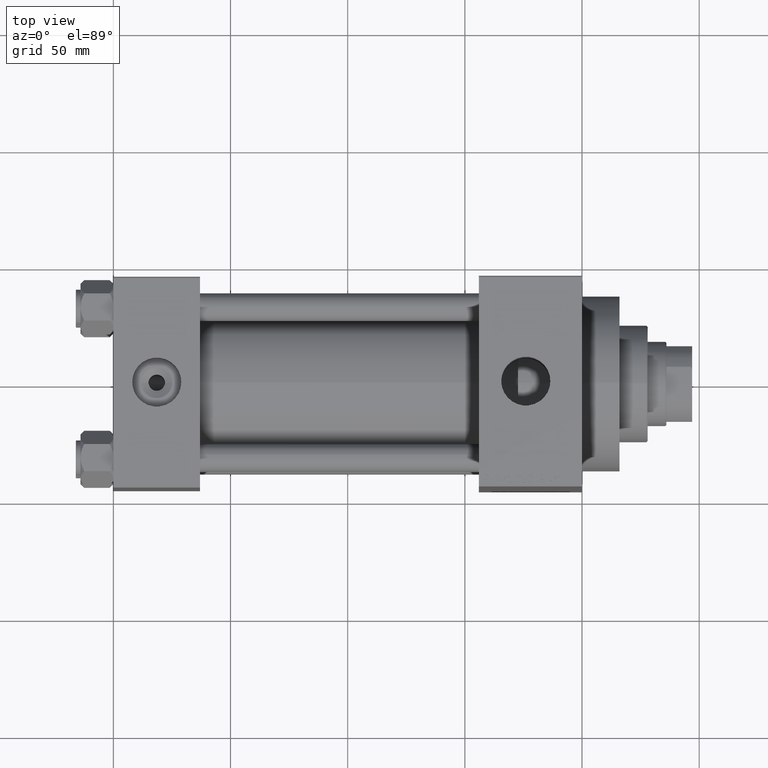
[diagram: clean part render]
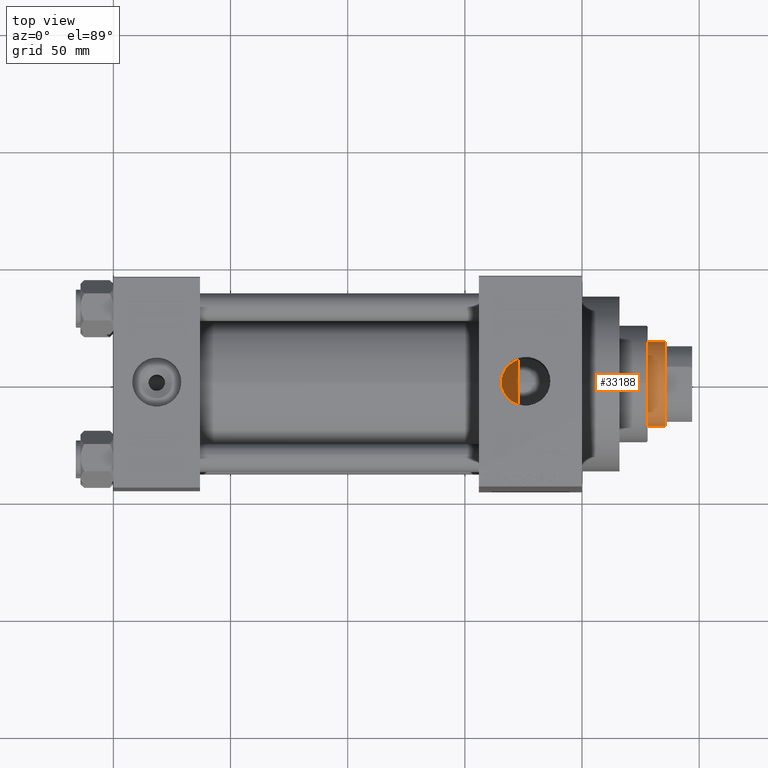
[diagram: same view with one face highlighted and labeled with its STEP entity id]
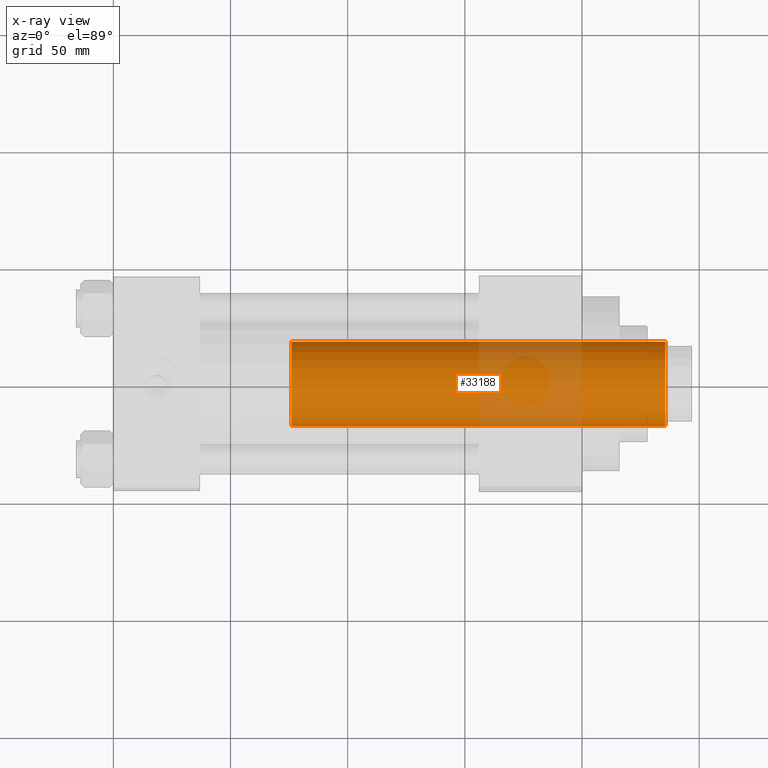
[diagram: x-ray of the same camera — body ghosted, the highlighted face saturated]
A machine part, top view. The second image highlights one B-rep face of the part: STEP entity #33188.
The next image is the same camera in x-ray: the body ghosted, the highlighted face saturated — about 22% of this face is hidden behind the body in this view.
In plain terms, the highlighted cylindrical surface (partial cylindrical patch) has radius 18 mm, axis along (-1, 0, 0).
Its self-contained STEP definition (entity closure, byte-faithful):
#485 = ORIENTED_EDGE ( 'NONE', *, *, #14944, .T. ) ;
#723 = VERTEX_POINT ( 'NONE', #44462 ) ;
#1662 = DIRECTION ( 'NONE',  ( -0.000000000000000000, -0.000000000000000000, -1.000000000000000000 ) ) ;
#3992 = VERTEX_POINT ( 'NONE', #38553 ) ;
#5007 = CARTESIAN_POINT ( 'NONE',  ( 18.00000000000000000, 2.204364238465235428E-15, 199.0000000000000000 ) ) ;
#5128 = DIRECTION ( 'NONE',  ( -1.000000000000000000, 0.000000000000000000, 0.000000000000000000 ) ) ;
#8047 = VERTEX_POINT ( 'NONE', #10581 ) ;
#8889 = CARTESIAN_POINT ( 'NONE',  ( -18.00000000000000000, 0.000000000000000000, 199.0000000000000000 ) ) ;
#9290 = DIRECTION ( 'NONE',  ( 0.000000000000000000, 0.000000000000000000, -1.000000000000000000 ) ) ;
#9372 = ORIENTED_EDGE ( 'NONE', *, *, #10644, .T. ) ;
#10581 = CARTESIAN_POINT ( 'NONE',  ( -18.00000000000000000, 0.000000000000000000, 198.5000000000000284 ) ) ;
#10644 = EDGE_CURVE ( 'NONE', #723, #27308, #33991, .T. ) ;
#10785 = DIRECTION ( 'NONE',  ( 1.000000000000000000, 0.000000000000000000, 0.000000000000000000 ) ) ;
#11861 = ORIENTED_EDGE ( 'NONE', *, *, #27954, .T. ) ;
#12292 = FACE_OUTER_BOUND ( 'NONE', #25320, .T. ) ;
#12704 = LINE ( 'NONE', #8889, #35036 ) ;
#13412 = AXIS2_PLACEMENT_3D ( 'NONE', #46378, #43253, #10785 ) ;
#14597 = AXIS2_PLACEMENT_3D ( 'NONE', #37834, #26878, #5128 ) ;
#14944 = EDGE_CURVE ( 'NONE', #3992, #8047, #33389, .T. ) ;
#16229 = LINE ( 'NONE', #5007, #47214 ) ;
#23685 = DIRECTION ( 'NONE',  ( -0.000000000000000000, -0.000000000000000000, -1.000000000000000000 ) ) ;
#25102 = CARTESIAN_POINT ( 'NONE',  ( 18.00000000000000000, 2.204364238465235428E-15, 39.00000000000000000 ) ) ;
#25320 = EDGE_LOOP ( 'NONE', ( #43109, #485, #11861, #9372 ) ) ;
#26878 = DIRECTION ( 'NONE',  ( -0.000000000000000000, -0.000000000000000000, -1.000000000000000000 ) ) ;
#27308 = VERTEX_POINT ( 'NONE', #25102 ) ;
#27954 = EDGE_CURVE ( 'NONE', #8047, #723, #12704, .T. ) ;
#28187 = EDGE_CURVE ( 'NONE', #3992, #27308, #16229, .T. ) ;
#30690 = CYLINDRICAL_SURFACE ( 'NONE', #14597, 18.00000000000000000 ) ;
#33188 = ADVANCED_FACE ( 'NONE', ( #12292 ), #30690, .T. ) ;
#33389 = CIRCLE ( 'NONE', #34163, 18.00000000000000000 ) ;
#33991 = CIRCLE ( 'NONE', #13412, 18.00000000000000000 ) ;
#34163 = AXIS2_PLACEMENT_3D ( 'NONE', #41995, #9290, #38415 ) ;
#35036 = VECTOR ( 'NONE', #23685, 1000.000000000000000 ) ;
#37834 = CARTESIAN_POINT ( 'NONE',  ( 0.000000000000000000, 0.000000000000000000, 199.0000000000000000 ) ) ;
#38415 = DIRECTION ( 'NONE',  ( 1.000000000000000000, 0.000000000000000000, 0.000000000000000000 ) ) ;
#38553 = CARTESIAN_POINT ( 'NONE',  ( 18.00000000000000000, 2.204364238465235428E-15, 198.5000000000000284 ) ) ;
#41995 = CARTESIAN_POINT ( 'NONE',  ( 0.000000000000000000, 0.000000000000000000, 198.5000000000000284 ) ) ;
#43109 = ORIENTED_EDGE ( 'NONE', *, *, #28187, .F. ) ;
#43253 = DIRECTION ( 'NONE',  ( 0.000000000000000000, 0.000000000000000000, 1.000000000000000000 ) ) ;
#44462 = CARTESIAN_POINT ( 'NONE',  ( -18.00000000000000000, 0.000000000000000000, 39.00000000000000000 ) ) ;
#46378 = CARTESIAN_POINT ( 'NONE',  ( 0.000000000000000000, 0.000000000000000000, 39.00000000000000000 ) ) ;
#47214 = VECTOR ( 'NONE', #1662, 1000.000000000000000 ) ;